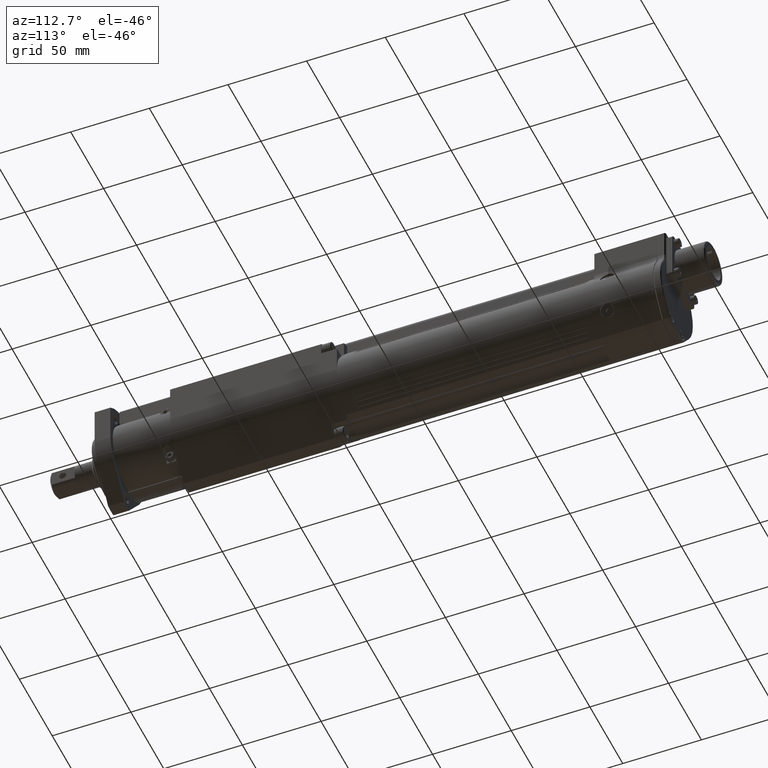
[diagram: clean part render]
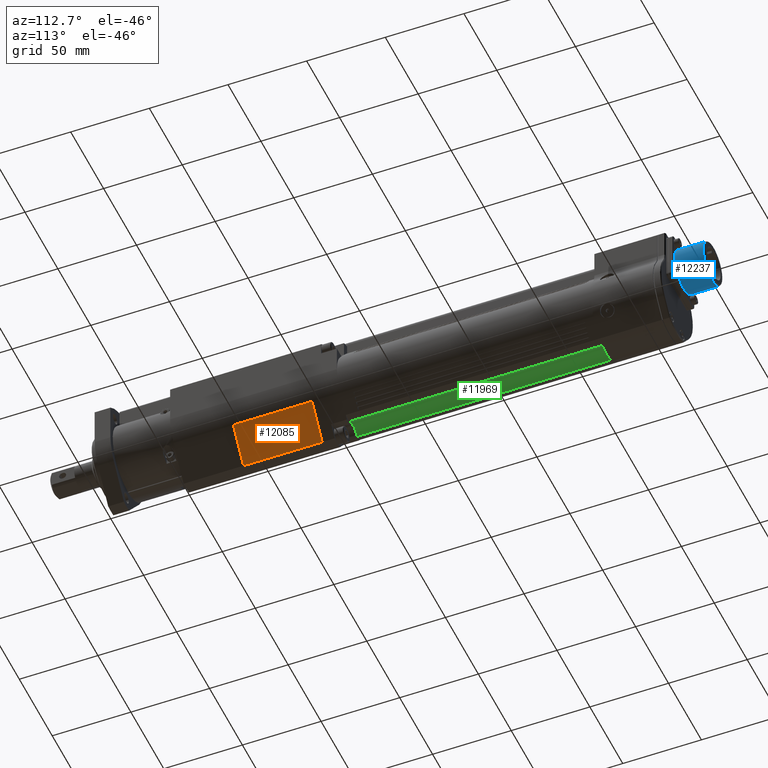
[diagram: same view with three faces highlighted in distinct colors, each labeled with its STEP entity id]
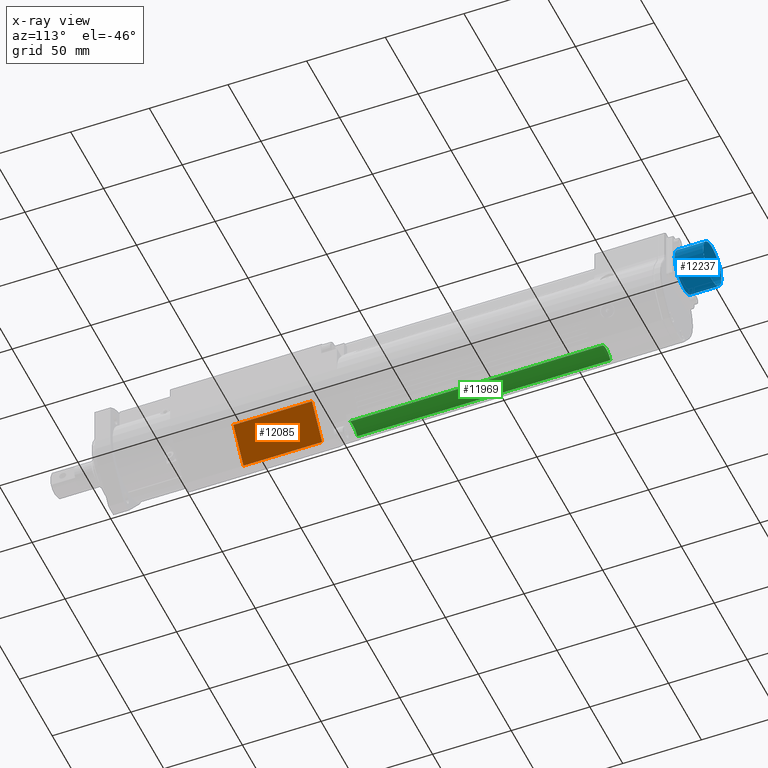
[diagram: x-ray of the same camera — body ghosted, the three highlighted faces saturated]
A machine part, auxiliary view with three faces highlighted in distinct colors.
The next image is the same camera in x-ray (body ghosted, the three faces saturated) — at least one of them is partly hidden behind the body in this view.
Their STEP definitions:

[orange] entity #12085 — the highlighted planar face has unit normal (-0.788, -0, 0.6157).
#657=PLANE('',#13138);
#922=LINE('',#17408,#1957);
#1616=LINE('',#19762,#2651);
#1617=LINE('',#19765,#2652);
#1618=LINE('',#19766,#2653);
#1957=VECTOR('',#13930,10.);
#2651=VECTOR('',#15930,10.);
#2652=VECTOR('',#15933,10.);
#2653=VECTOR('',#15934,10.);
#3492=FACE_OUTER_BOUND('',#4235,.T.);
#4235=EDGE_LOOP('',(#9982,#9983,#9984,#9985));
#5113=VERTEX_POINT('',#17401);
#5115=VERTEX_POINT('',#17407);
#5765=VERTEX_POINT('',#19760);
#5766=VERTEX_POINT('',#19764);
#6250=EDGE_CURVE('',#5115,#5113,#922,.T.);
#7261=EDGE_CURVE('',#5113,#5765,#1616,.T.);
#7262=EDGE_CURVE('',#5766,#5765,#1617,.T.);
#7263=EDGE_CURVE('',#5766,#5115,#1618,.T.);
#9982=ORIENTED_EDGE('',*,*,#7262,.T.);
#9983=ORIENTED_EDGE('',*,*,#7261,.F.);
#9984=ORIENTED_EDGE('',*,*,#6250,.F.);
#9985=ORIENTED_EDGE('',*,*,#7263,.F.);
#12085=ADVANCED_FACE('',(#3492),#657,.F.);
#13138=AXIS2_PLACEMENT_3D('',#19763,#15931,#15932);
#13930=DIRECTION('',(0.615661475325658,-4.84192323887431E-16,0.788010753606722));
#15930=DIRECTION('',(2.2175312825562E-16,1.,4.41196346872454E-16));
#15931=DIRECTION('center_axis',(-0.788010753606722,-9.68837441124263E-17,
0.615661475325658));
#15932=DIRECTION('ref_axis',(0.615661475325658,-4.84192323887431E-16,0.788010753606722));
#15933=DIRECTION('',(0.61566147532566,-1.3999769914681E-16,0.788010753606721));
#15934=DIRECTION('',(-2.2175312825562E-16,-1.,-4.41196346872454E-16));
#17401=CARTESIAN_POINT('',(19.3062634633647,86.,-15.0837061454786));
#17407=CARTESIAN_POINT('',(3.91780519549223,86.,-34.7800345377945));
#17408=CARTESIAN_POINT('',(20.1021219343434,86.,-14.0650537551394));
#19760=CARTESIAN_POINT('',(19.3062634633647,136.,-15.0837061454786));
#19762=CARTESIAN_POINT('',(19.3062634633647,86.,-15.0837061454786));
#19763=CARTESIAN_POINT('Origin',(3.91780519549223,86.,-34.7800345377945));
#19764=CARTESIAN_POINT('',(3.91780519549214,136.,-34.7800345377944));
#19765=CARTESIAN_POINT('',(3.91780519549214,136.,-34.7800345377944));
#19766=CARTESIAN_POINT('',(3.91780519549224,111.,-34.7800345377944));

[blue] entity #12237 — the highlighted cylindrical surface (bore or boss wall) has radius 13.7 mm, axis along (0, 1, 0).
#1809=LINE('',#21053,#2844);
#2844=VECTOR('',#16583,13.7);
#3003=CYLINDRICAL_SURFACE('',#13367,13.7);
#3644=FACE_OUTER_BOUND('',#4406,.T.);
#4406=EDGE_LOOP('',(#10757,#10758,#10759,#10760,#10761));
#4895=CIRCLE('',#13365,13.7);
#4896=CIRCLE('',#13366,13.7);
#4897=CIRCLE('',#13368,13.7);
#5971=VERTEX_POINT('',#21046);
#5972=VERTEX_POINT('',#21048);
#5973=VERTEX_POINT('',#21052);
#7595=EDGE_CURVE('',#5971,#5972,#4895,.T.);
#7596=EDGE_CURVE('',#5972,#5971,#4896,.T.);
#7597=EDGE_CURVE('',#5972,#5973,#1809,.T.);
#7598=EDGE_CURVE('',#5973,#5973,#4897,.T.);
#10757=ORIENTED_EDGE('',*,*,#7596,.F.);
#10758=ORIENTED_EDGE('',*,*,#7597,.T.);
#10759=ORIENTED_EDGE('',*,*,#7598,.F.);
#10760=ORIENTED_EDGE('',*,*,#7597,.F.);
#10761=ORIENTED_EDGE('',*,*,#7595,.F.);
#12237=ADVANCED_FACE('',(#3644),#3003,.T.);
#13365=AXIS2_PLACEMENT_3D('',#21049,#16577,#16578);
#13366=AXIS2_PLACEMENT_3D('',#21050,#16579,#16580);
#13367=AXIS2_PLACEMENT_3D('',#21051,#16581,#16582);
#13368=AXIS2_PLACEMENT_3D('',#21054,#16584,#16585);
#16577=DIRECTION('center_axis',(3.76311597526564E-16,1.,7.29172631334158E-18));
#16578=DIRECTION('ref_axis',(1.,-3.76311597526612E-16,6.6153506284028E-12));
#16579=DIRECTION('center_axis',(3.76311597526564E-16,1.,7.29172631334158E-18));
#16580=DIRECTION('ref_axis',(1.,-3.76311597526612E-16,6.6153506284028E-12));
#16581=DIRECTION('center_axis',(3.76311597526564E-16,1.,7.29172631334158E-18));
#16582=DIRECTION('ref_axis',(1.,-3.76311597526612E-16,6.6153506284028E-12));
#16583=DIRECTION('',(-3.76311597526564E-16,-1.,-7.29172631334158E-18));
#16584=DIRECTION('center_axis',(-3.76311597526564E-16,-1.,-7.29172631334158E-18));
#16585=DIRECTION('ref_axis',(1.,-3.76311597526612E-16,6.6153506284028E-12));
#21046=CARTESIAN_POINT('',(13.6999999998555,382.4,21.0000000000852));
#21048=CARTESIAN_POINT('',(-13.7000000001445,382.4,20.9999999999039));
#21049=CARTESIAN_POINT('Origin',(-1.44478537387869E-10,382.4,20.9999999999946));
#21050=CARTESIAN_POINT('Origin',(-1.44478537387869E-10,382.4,20.9999999999946));
#21051=CARTESIAN_POINT('Origin',(-1.44485386258944E-10,364.2,20.9999999999946));
#21052=CARTESIAN_POINT('',(-13.7000000001445,364.2,20.9999999999039));
#21053=CARTESIAN_POINT('',(-13.7000000001445,364.2,20.9999999999039));
#21054=CARTESIAN_POINT('Origin',(-1.44485386258944E-10,364.2,20.9999999999946));

[green] entity #11969 — the highlighted cylindrical surface (edge-blend (fillet) strip) has radius 8 mm, axis along (0, 1, 0).
#1443=LINE('',#19180,#2478);
#1444=LINE('',#19184,#2479);
#2478=VECTOR('',#15371,10.);
#2479=VECTOR('',#15376,10.);
#2939=CYLINDRICAL_SURFACE('',#12946,8.);
#3376=FACE_OUTER_BOUND('',#4104,.T.);
#4104=EDGE_LOOP('',(#9426,#9427,#9428,#9429));
#4712=CIRCLE('',#12803,8.);
#4746=CIRCLE('',#12947,8.);
#5431=VERTEX_POINT('',#18493);
#5432=VERTEX_POINT('',#18494);
#5612=VERTEX_POINT('',#19179);
#5613=VERTEX_POINT('',#19183);
#6722=EDGE_CURVE('',#5431,#5432,#4712,.T.);
#6990=EDGE_CURVE('',#5432,#5612,#1443,.T.);
#6992=EDGE_CURVE('',#5431,#5613,#1444,.T.);
#6993=EDGE_CURVE('',#5612,#5613,#4746,.T.);
#9426=ORIENTED_EDGE('',*,*,#6990,.F.);
#9427=ORIENTED_EDGE('',*,*,#6722,.F.);
#9428=ORIENTED_EDGE('',*,*,#6992,.T.);
#9429=ORIENTED_EDGE('',*,*,#6993,.F.);
#11969=ADVANCED_FACE('',(#3376),#2939,.F.);
#12803=AXIS2_PLACEMENT_3D('',#18495,#14864,#14865);
#12946=AXIS2_PLACEMENT_3D('',#19182,#15374,#15375);
#12947=AXIS2_PLACEMENT_3D('',#19185,#15377,#15378);
#14864=DIRECTION('center_axis',(-2.21945204084769E-16,-1.,-7.29172631221787E-18));
#14865=DIRECTION('ref_axis',(0.804648356892576,-1.74258369258553E-16,-0.59375164989251));
#15371=DIRECTION('',(-2.21945204084769E-16,-1.,-7.29172631221787E-18));
#15374=DIRECTION('center_axis',(2.21945204084769E-16,1.,7.29172631221787E-18));
#15375=DIRECTION('ref_axis',(-0.804648356892576,1.74258369258553E-16,0.59375164989251));
#15376=DIRECTION('',(-2.21945204084769E-16,-1.,-7.29172631221787E-18));
#15377=DIRECTION('center_axis',(2.18217717075214E-16,1.,7.16926448557887E-18));
#15378=DIRECTION('ref_axis',(-0.804648356892576,1.74258369258553E-16,0.59375164989251));
#18493=CARTESIAN_POINT('',(6.43718685527009,315.,-27.2500023007437));
#18494=CARTESIAN_POINT('',(-6.43718685493416,315.,-27.250002300848));
#18495=CARTESIAN_POINT('Origin',(2.06432232623924E-10,315.,-32.0000154999881));
#19179=CARTESIAN_POINT('',(-6.4371868549342,154.,-27.250002300848));
#19180=CARTESIAN_POINT('',(-6.4371868549342,162.,-27.250002300848));
#19182=CARTESIAN_POINT('Origin',(2.06398275007699E-10,162.,-32.0000154999881));
#19183=CARTESIAN_POINT('',(6.43718685527006,154.,-27.2500023007437));
#19184=CARTESIAN_POINT('',(6.43718685527006,162.,-27.2500023007437));
#19185=CARTESIAN_POINT('Origin',(2.06396499446067E-10,154.,-32.0000154999881));